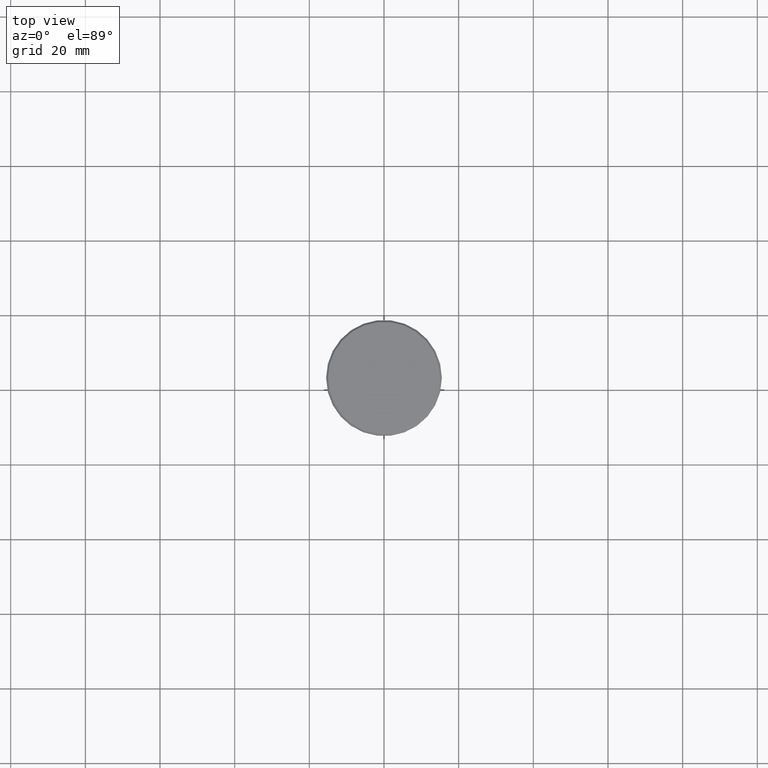
[diagram: clean part render]
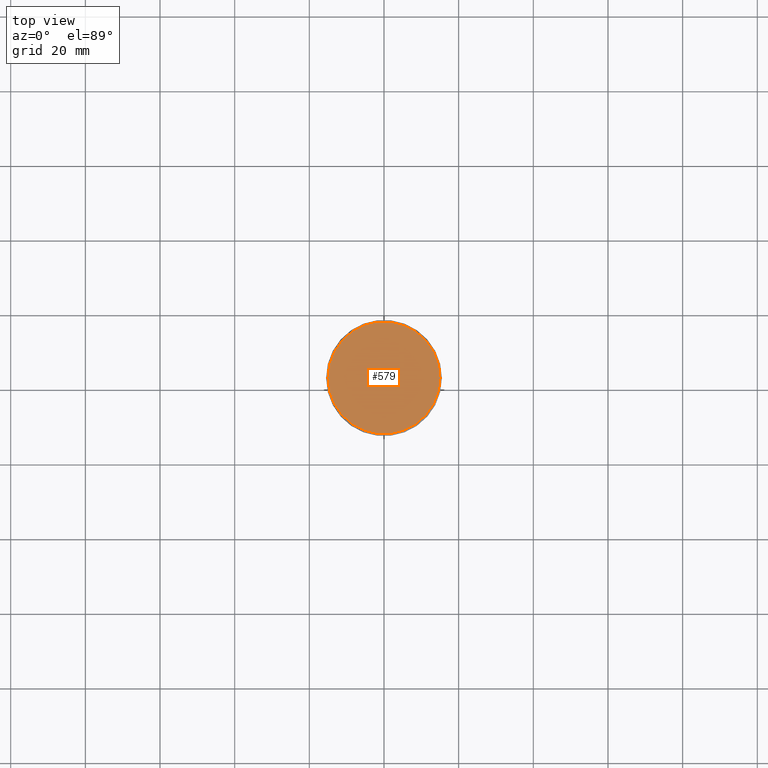
[diagram: same view with one face highlighted and labeled with its STEP entity id]
A machine part, top view. The second image highlights one B-rep face of the part: STEP entity #579.
In plain terms, the highlighted planar face has unit normal (0, -0, 1).
Its self-contained STEP definition (entity closure, byte-faithful):
#44 = DIRECTION ( 'NONE',  ( 1.000000000000000000, 0.000000000000000000, 0.000000000000000000 ) ) ;
#159 = FACE_OUTER_BOUND ( 'NONE', #1092, .T. ) ;
#250 = CIRCLE ( 'NONE', #616, 14.99999999999998579 ) ;
#336 = PLANE ( 'NONE',  #886 ) ;
#351 = ORIENTED_EDGE ( 'NONE', *, *, #1181, .T. ) ;
#389 = CIRCLE ( 'NONE', #1061, 14.99999999999998579 ) ;
#408 = CARTESIAN_POINT ( 'NONE',  ( -14.99999999999998579, 0.000000000000000000, 0.000000000000000000 ) ) ;
#458 = DIRECTION ( 'NONE',  ( 1.000000000000000000, 0.000000000000000000, 0.000000000000000000 ) ) ;
#523 = CARTESIAN_POINT ( 'NONE',  ( 0.000000000000000000, 0.000000000000000000, 0.000000000000000000 ) ) ;
#579 = ADVANCED_FACE ( 'NONE', ( #159 ), #336, .T. ) ;
#590 = CARTESIAN_POINT ( 'NONE',  ( 14.99999999999998579, 1.867586368699712587E-15, 0.000000000000000000 ) ) ;
#616 = AXIS2_PLACEMENT_3D ( 'NONE', #866, #677, #44 ) ;
#669 = VERTEX_POINT ( 'NONE', #408 ) ;
#677 = DIRECTION ( 'NONE',  ( -0.000000000000000000, -0.000000000000000000, 1.000000000000000000 ) ) ;
#688 = EDGE_CURVE ( 'NONE', #1014, #669, #250, .T. ) ;
#708 = ORIENTED_EDGE ( 'NONE', *, *, #688, .T. ) ;
#711 = CARTESIAN_POINT ( 'NONE',  ( 0.000000000000000000, 0.000000000000000000, 0.000000000000000000 ) ) ;
#866 = CARTESIAN_POINT ( 'NONE',  ( 0.000000000000000000, 0.000000000000000000, 0.000000000000000000 ) ) ;
#886 = AXIS2_PLACEMENT_3D ( 'NONE', #523, #1093, #458 ) ;
#889 = DIRECTION ( 'NONE',  ( -0.000000000000000000, -0.000000000000000000, 1.000000000000000000 ) ) ;
#899 = DIRECTION ( 'NONE',  ( 1.000000000000000000, 0.000000000000000000, 0.000000000000000000 ) ) ;
#1014 = VERTEX_POINT ( 'NONE', #590 ) ;
#1061 = AXIS2_PLACEMENT_3D ( 'NONE', #711, #889, #899 ) ;
#1092 = EDGE_LOOP ( 'NONE', ( #351, #708 ) ) ;
#1093 = DIRECTION ( 'NONE',  ( 0.000000000000000000, -0.000000000000000000, 1.000000000000000000 ) ) ;
#1181 = EDGE_CURVE ( 'NONE', #669, #1014, #389, .T. ) ;